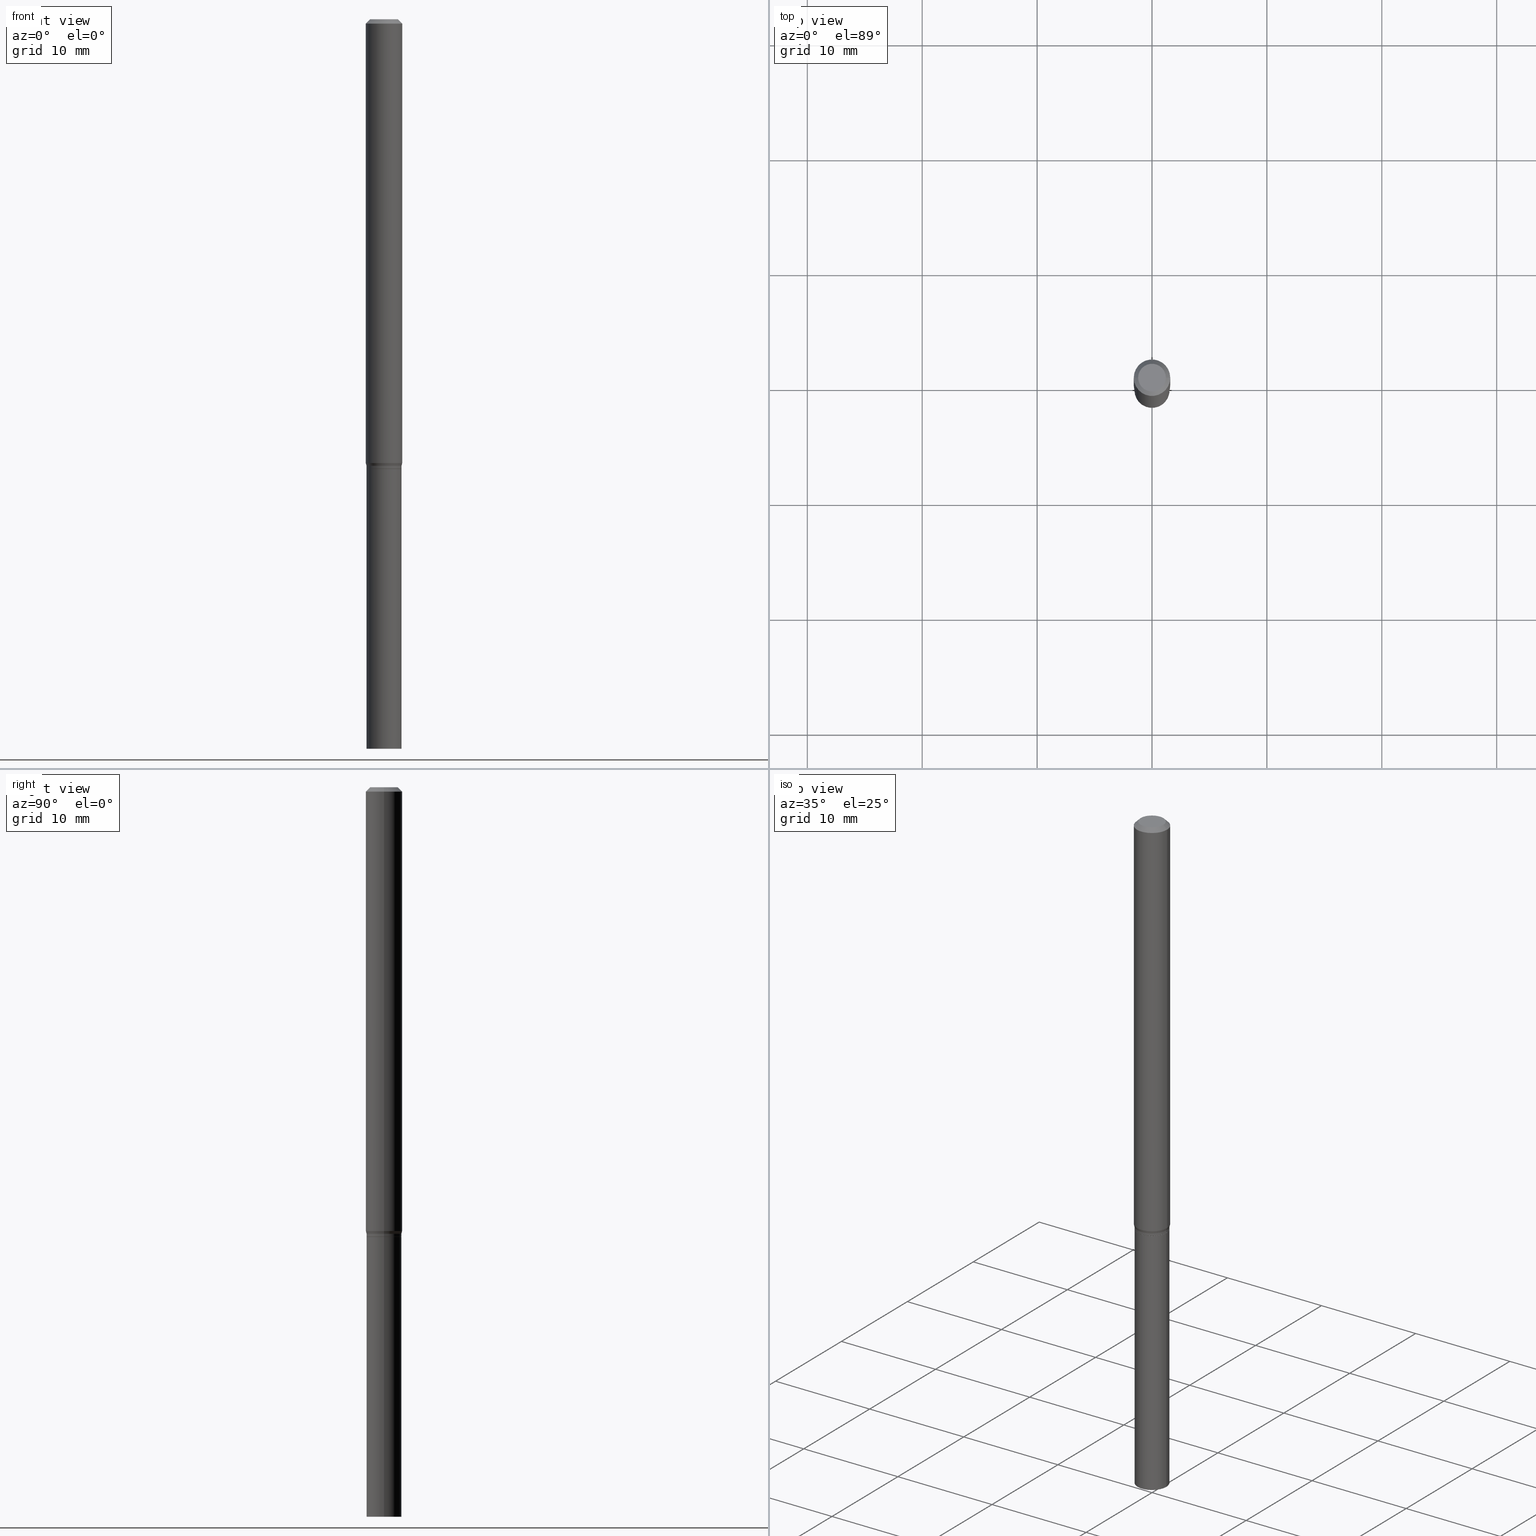
[diagram: canonical four-view strip — front | top / right | iso, engineering-drawing reading convention]
A machine part, canonical four-view strip (front | top / right | iso — engineering-drawing reading convention). The complete STEP part file that produces these views, byte-faithful:
ISO-10303-21;
HEADER;
FILE_DESCRIPTION (( 'STEP AP203' ),
    '1' );
FILE_NAME ('00637.STEP',
    '2024-03-19T22:13:30',
    ( '' ),
    ( '' ),
    'SwSTEP 2.0',
    'SolidWorks 2023',
    '' );
FILE_SCHEMA (( 'CONFIG_CONTROL_DESIGN' ));
ENDSEC;

DATA;
#1 = VERTEX_POINT ( 'NONE', #247 ) ;
#2 = LINE ( 'NONE', #400, #5 ) ;
#3 = EDGE_LOOP ( 'NONE', ( #169, #33, #93, #40 ) ) ;
#4 = ORIENTED_EDGE ( 'NONE', *, *, #102, .T. ) ;
#5 = VECTOR ( 'NONE', #214, 39.37007874015748143 ) ;
#6 = AXIS2_PLACEMENT_3D ( 'NONE', #317, #391, #244 ) ;
#7 = DIRECTION ( 'NONE',  ( 0.7071067811865452413, -7.319954787623248157E-15, -0.7071067811865497932 ) ) ;
#8 = CYLINDRICAL_SURFACE ( 'NONE', #236, 0.05999999999999979655 ) ;
#9 = EDGE_CURVE ( 'NONE', #311, #315, #53, .T. ) ;
#10 = PERSON_AND_ORGANIZATION ( #193, #386 ) ;
#11 = CIRCLE ( 'NONE', #346, 0.05999999999999999778 ) ;
#12 = MANIFOLD_SOLID_BREP ( 'Body-Move/Copy2[1]', #199 ) ;
#13 = ORIENTED_EDGE ( 'NONE', *, *, #211, .F. ) ;
#14 = DIRECTION ( 'NONE',  ( 1.000000000000000000, -6.982962677686266711E-15, 0.000000000000000000 ) ) ;
#15 = EDGE_CURVE ( 'NONE', #357, #125, #389, .T. ) ;
#16 = DIRECTION ( 'NONE',  ( 1.000000000000000000, -6.982962677686274599E-15, 0.000000000000000000 ) ) ;
#17 = COORDINATED_UNIVERSAL_TIME_OFFSET ( 5, 0, .BEHIND. ) ;
#18 = DIRECTION ( 'NONE',  ( 1.000000000000000000, -6.982962677686251722E-15, 0.000000000000000000 ) ) ;
#19 = PLANE ( 'NONE',  #448 ) ;
#20 = PLANE ( 'NONE',  #432 ) ;
#21 = PERSON_AND_ORGANIZATION ( #193, #386 ) ;
#22 = ORIENTED_EDGE ( 'NONE', *, *, #320, .F. ) ;
#23 = APPROVAL_PERSON_ORGANIZATION ( #271, #277, #304 ) ;
#24 = DIRECTION ( 'NONE',  ( 2.445468806185136597E-29, -3.491481338843145583E-15, -1.000000000000000000 ) ) ;
#25 = CARTESIAN_POINT ( 'NONE',  ( 0.05999999999999999778, -9.147681107769039999E-15, -2.500000000000000000 ) ) ;
#26 = ORIENTED_EDGE ( 'NONE', *, *, #440, .T. ) ;
#27 = ORIENTED_EDGE ( 'NONE', *, *, #430, .T. ) ;
#28 = CIRCLE ( 'NONE', #75, 0.04749999999999999362 ) ;
#29 = CARTESIAN_POINT ( 'NONE',  ( 4.189777606612136116E-16, 0.05999999999999462014, -1.540000000000000480 ) ) ;
#30 = CC_DESIGN_APPROVAL ( #384, ( #168 ) ) ;
#31 = EDGE_LOOP ( 'NONE', ( #285, #123, #13, #324 ) ) ;
#32 = ADVANCED_FACE ( 'NONE', ( #210 ), #395, .T. ) ;
#33 = ORIENTED_EDGE ( 'NONE', *, *, #292, .T. ) ;
#34 = MANIFOLD_SOLID_BREP ( 'Body-Move/Copy2[2]', #69 ) ;
#35 = ORIENTED_EDGE ( 'NONE', *, *, #364, .F. ) ;
#36 = ORIENTED_EDGE ( 'NONE', *, *, #312, .F. ) ;
#37 = DIRECTION ( 'NONE',  ( -2.445468806185136597E-29, 3.491481338843145583E-15, 1.000000000000000000 ) ) ;
#38 = CARTESIAN_POINT ( 'NONE',  ( 0.05999999999999979655, -4.189777606611745630E-16, 2.925706065477551246E-30 ) ) ;
#39 = VERTEX_POINT ( 'NONE', #435 ) ;
#40 = ORIENTED_EDGE ( 'NONE', *, *, #284, .F. ) ;
#41 = CARTESIAN_POINT ( 'NONE',  ( -0.05999999999999979655, 4.263256414560586659E-16, -2.951361054152933254E-30 ) ) ;
#42 = DIRECTION ( 'NONE',  ( 1.000000000000000000, -6.982962677686259611E-15, 0.000000000000000000 ) ) ;
#43 = DIRECTION ( 'NONE',  ( 0.2588190451025217942, 1.565188264969618812E-15, 0.9659258262890679791 ) ) ;
#44 = FACE_OUTER_BOUND ( 'NONE', #3, .T. ) ;
#45 = APPROVAL_PERSON_ORGANIZATION ( #190, #314, #376 ) ;
#46 = ADVANCED_FACE ( 'NONE', ( #44 ), #100, .T. ) ;
#47 = PERSON_AND_ORGANIZATION_ROLE ( 'classification_officer' ) ;
#48 = CARTESIAN_POINT ( 'NONE',  ( 6.198122052593289668E-29, -8.607766087339451973E-15, -2.500000000000000000 ) ) ;
#49 = DIRECTION ( 'NONE',  ( -2.438088387897960049E-29, 3.491481338843145188E-15, 1.000000000000000000 ) ) ;
#50 = AXIS2_PLACEMENT_3D ( 'NONE', #55, #268, #298 ) ;
#51 = EDGE_CURVE ( 'NONE', #458, #195, #373, .T. ) ;
#52 = CARTESIAN_POINT ( 'NONE',  ( 0.000000000000000000, 0.000000000000000000, 0.000000000000000000 ) ) ;
#53 = CIRCLE ( 'NONE', #6, 0.04749999999999999362 ) ;
#54 = CARTESIAN_POINT ( 'NONE',  ( 3.766021961525110516E-29, -5.376881261818443984E-15, -1.540000000000000036 ) ) ;
#55 = CARTESIAN_POINT ( 'NONE',  ( 0.000000000000000000, 0.000000000000000000, 0.000000000000000000 ) ) ;
#56 = PERSON_AND_ORGANIZATION ( #193, #386 ) ;
#57 = DIRECTION ( 'NONE',  ( -2.445468806185136597E-29, 3.491481338843145583E-15, 1.000000000000000000 ) ) ;
#58 = DIRECTION ( 'NONE',  ( 1.000000000000000000, -6.982962677686266711E-15, 4.876176775795935793E-29 ) ) ;
#59 = CARTESIAN_POINT ( 'NONE',  ( 3.668203209277705088E-31, -5.237222008264718399E-17, -0.01499999999999999944 ) ) ;
#60 = LOCAL_TIME ( 18, 13, 30.00000000000000000, #186 ) ;
#61 = CARTESIAN_POINT ( 'NONE',  ( 0.06250000000000000000, -4.364351673553916694E-16, 3.047610484872459871E-30 ) ) ;
#62 = VERTEX_POINT ( 'NONE', #445 ) ;
#63 = DIRECTION ( 'NONE',  ( -0.2588190451025217942, 5.211531920934552619E-15, 0.9659258262890679791 ) ) ;
#64 = ADVANCED_FACE ( 'NONE', ( #300 ), #442, .T. ) ;
#65 = VECTOR ( 'NONE', #118, 39.37007874015748143 ) ;
#66 = DIRECTION ( 'NONE',  ( -2.445468806185136597E-29, 3.491481338843145583E-15, 1.000000000000000000 ) ) ;
#67 = CONICAL_SURFACE ( 'NONE', #372, 0.05999999999999994227, 0.2617993877991505181 ) ;
#68 = DIMENSIONAL_EXPONENTS ( 1.000000000000000000, 0.000000000000000000, 0.000000000000000000, 0.000000000000000000, 0.000000000000000000, 0.000000000000000000, 0.000000000000000000 ) ;
#69 = CLOSED_SHELL ( 'NONE', ( #96, #92, #206, #249, #74, #417, #46, #173, #154, #278, #32, #446 ) ) ;
#70 = ORIENTED_EDGE ( 'NONE', *, *, #211, .T. ) ;
#71 = DIRECTION ( 'NONE',  ( 1.000000000000000000, -6.982962677686262766E-15, 0.000000000000000000 ) ) ;
#72 = DIRECTION ( 'NONE',  ( 1.000000000000000000, -6.982962677686274599E-15, 0.000000000000000000 ) ) ;
#73 = LINE ( 'NONE', #293, #410 ) ;
#74 = ADVANCED_FACE ( 'NONE', ( #260 ), #185, .T. ) ;
#75 = AXIS2_PLACEMENT_3D ( 'NONE', #152, #90, #330 ) ;
#76 = COORDINATED_UNIVERSAL_TIME_OFFSET ( 5, 0, .BEHIND. ) ;
#77 = APPROVAL_DATE_TIME ( #341, #314 ) ;
#78 = EDGE_CURVE ( 'NONE', #237, #39, #161, .T. ) ;
#79 = EDGE_LOOP ( 'NONE', ( #441, #388, #128, #418 ) ) ;
#80 = VECTOR ( 'NONE', #43, 39.37007874015748143 ) ;
#81 = AXIS2_PLACEMENT_3D ( 'NONE', #328, #251, #138 ) ;
#82 = AXIS2_PLACEMENT_3D ( 'NONE', #258, #37, #326 ) ;
#83 = CARTESIAN_POINT ( 'NONE',  ( 0.000000000000000000, 0.000000000000000000, 0.000000000000000000 ) ) ;
#84 = PERSON_AND_ORGANIZATION ( #193, #386 ) ;
#85 = DIRECTION ( 'NONE',  ( 1.000000000000000000, -6.982962677686266711E-15, 0.000000000000000000 ) ) ;
#86 = FACE_OUTER_BOUND ( 'NONE', #362, .T. ) ;
#87 = LINE ( 'NONE', #147, #65 ) ;
#88 = DIRECTION ( 'NONE',  ( 2.438088387897960049E-29, -3.491481338843145188E-15, -1.000000000000000000 ) ) ;
#89 = ORIENTED_EDGE ( 'NONE', *, *, #116, .F. ) ;
#90 = DIRECTION ( 'NONE',  ( -2.445468806185136597E-29, 3.491481338843145583E-15, 1.000000000000000000 ) ) ;
#91 = ORIENTED_EDGE ( 'NONE', *, *, #411, .T. ) ;
#92 = ADVANCED_FACE ( 'NONE', ( #378 ), #126, .T. ) ;
#93 = ORIENTED_EDGE ( 'NONE', *, *, #116, .T. ) ;
#94 = DIRECTION ( 'NONE',  ( 1.000000000000000000, -6.982962677686259611E-15, 0.000000000000000000 ) ) ;
#95 = EDGE_LOOP ( 'NONE', ( #70, #461, #370, #338 ) ) ;
#96 = ADVANCED_FACE ( 'NONE', ( #155 ), #8, .T. ) ;
#97 = CC_DESIGN_DATE_AND_TIME_ASSIGNMENT ( #331, #439, ( #168 ) ) ;
#98 = AXIS2_PLACEMENT_3D ( 'NONE', #109, #183, #14 ) ;
#99 = CARTESIAN_POINT ( 'NONE',  ( 0.05999999999999994227, -5.760944209091188969E-15, -1.530000000000000027 ) ) ;
#100 = CYLINDRICAL_SURFACE ( 'NONE', #81, 0.06250000000000000000 ) ;
#101 = CARTESIAN_POINT ( 'NONE',  ( -0.05999999999999999778, 4.263256414560600957E-16, -2.951361054152943413E-30 ) ) ;
#102 = EDGE_CURVE ( 'NONE', #238, #39, #87, .T. ) ;
#103 = DIRECTION ( 'NONE',  ( 1.000000000000000000, -6.982962677686266711E-15, 4.876176775795935232E-29 ) ) ;
#104 = AXIS2_PLACEMENT_3D ( 'NONE', #54, #150, #42 ) ;
#105 = DATE_AND_TIME ( #367, #228 ) ;
#106 = DIRECTION ( 'NONE',  ( -2.445468806185136597E-29, 3.491481338843145583E-15, 1.000000000000000000 ) ) ;
#107 = PERSON_AND_ORGANIZATION ( #193, #386 ) ;
#108 = DIRECTION ( 'NONE',  ( -2.445468806185136597E-29, 3.491481338843145583E-15, 1.000000000000000000 ) ) ;
#109 = CARTESIAN_POINT ( 'NONE',  ( 3.668203209277705088E-31, -5.237222008264718399E-17, -0.01499999999999999944 ) ) ;
#110 =( GEOMETRIC_REPRESENTATION_CONTEXT ( 3 ) GLOBAL_UNCERTAINTY_ASSIGNED_CONTEXT ( ( #111 ) ) GLOBAL_UNIT_ASSIGNED_CONTEXT ( ( #179, #394, #254 ) ) REPRESENTATION_CONTEXT ( 'NONE', 'WORKASPACE' ) );
#111 = UNCERTAINTY_MEASURE_WITH_UNIT (LENGTH_MEASURE( 1.000000000000000082E-05 ), #179, 'distance_accuracy_value', 'NONE');
#112 = CC_DESIGN_SECURITY_CLASSIFICATION ( #168, ( #219 ) ) ;
#113 = CALENDAR_DATE ( 2024, 19, 3 ) ;
#114 = CONICAL_SURFACE ( 'NONE', #170, 0.06250000000000000000, 0.7853981633974450594 ) ;
#115 = DIRECTION ( 'NONE',  ( -1.000000000000000000, 6.982962677686265922E-15, -4.876176775795935793E-29 ) ) ;
#116 = EDGE_CURVE ( 'NONE', #1, #237, #192, .T. ) ;
#117 = APPROVAL_STATUS ( 'not_yet_approved' ) ;
#118 = DIRECTION ( 'NONE',  ( -2.445468806185136877E-29, 3.491481338843145188E-15, 1.000000000000000000 ) ) ;
#119 = CARTESIAN_POINT ( 'NONE',  ( -0.04749999999999999362, 3.578768372314212971E-16, 9.929557176494080355E-17 ) ) ;
#120 = AXIS2_PLACEMENT_3D ( 'NONE', #369, #49, #340 ) ;
#121 = VECTOR ( 'NONE', #174, 39.37007874015748143 ) ;
#122 = CARTESIAN_POINT ( 'NONE',  ( 3.741567273463259531E-29, -5.341966448430012335E-15, -1.530000000000000027 ) ) ;
#123 = ORIENTED_EDGE ( 'NONE', *, *, #15, .T. ) ;
#124 = CIRCLE ( 'NONE', #265, 0.05999999999999999778 ) ;
#125 = VERTEX_POINT ( 'NONE', #201 ) ;
#126 = CONICAL_SURFACE ( 'NONE', #159, 0.05949999999999999734, 0.7853981633974739252 ) ;
#127 = EDGE_CURVE ( 'NONE', #257, #357, #327, .T. ) ;
#128 = ORIENTED_EDGE ( 'NONE', *, *, #382, .T. ) ;
#129 = CYLINDRICAL_SURFACE ( 'NONE', #234, 0.05999999999999999778 ) ;
#130 = APPLICATION_PROTOCOL_DEFINITION ( 'international standard', 'config_control_design', 1994, #380 ) ;
#131 = DIRECTION ( 'NONE',  ( -0.7071067811865656694, 7.493145998870420424E-15, 0.7071067811865294761 ) ) ;
#132 = VECTOR ( 'NONE', #287, 39.37007874015748143 ) ;
#133 = CARTESIAN_POINT ( 'NONE',  ( 3.766021961525110516E-29, -5.376881261818443984E-15, -1.540000000000000036 ) ) ;
#134 = ORIENTED_EDGE ( 'NONE', *, *, #15, .F. ) ;
#135 = DIRECTION ( 'NONE',  ( -2.445468806185136597E-29, 3.491481338843145583E-15, 1.000000000000000000 ) ) ;
#136 = DIRECTION ( 'NONE',  ( 1.000000000000000000, -6.982962677686267499E-15, 4.876176775795936353E-29 ) ) ;
#137 = PERSON_AND_ORGANIZATION_ROLE ( 'creator' ) ;
#138 = DIRECTION ( 'NONE',  ( 1.000000000000000000, -6.982962677686266711E-15, 4.876176775795935793E-29 ) ) ;
#139 = APPROVAL_STATUS ( 'not_yet_approved' ) ;
#140 = ORIENTED_EDGE ( 'NONE', *, *, #9, .F. ) ;
#141 = PERSON_AND_ORGANIZATION_ROLE ( 'creator' ) ;
#142 = ORIENTED_EDGE ( 'NONE', *, *, #299, .F. ) ;
#143 = ORIENTED_EDGE ( 'NONE', *, *, #377, .T. ) ;
#144 = DIRECTION ( 'NONE',  ( 1.000000000000000000, -6.982962677686267499E-15, 4.876176775795936353E-29 ) ) ;
#145 = CARTESIAN_POINT ( 'NONE',  ( 0.06250000000000000000, -4.888073874380388472E-16, -0.01499999999999999944 ) ) ;
#146 = CALENDAR_DATE ( 2024, 19, 3 ) ;
#147 = CARTESIAN_POINT ( 'NONE',  ( -0.06250000000000000000, 4.440892098500626162E-16, -3.074334431409316114E-30 ) ) ;
#148 = EDGE_CURVE ( 'NONE', #217, #393, #457, .T. ) ;
#149 = LOCAL_TIME ( 18, 13, 30.00000000000000000, #17 ) ;
#150 = DIRECTION ( 'NONE',  ( -2.445468806185136597E-29, 3.491481338843145583E-15, 1.000000000000000000 ) ) ;
#151 = APPROVAL_STATUS ( 'not_yet_approved' ) ;
#152 = CARTESIAN_POINT ( 'NONE',  ( -2.428242233434862517E-45, 3.466886358470595669E-31, 9.929557176494321944E-17 ) ) ;
#153 = CARTESIAN_POINT ( 'NONE',  ( 3.668203209277705088E-31, -5.237222008264718399E-17, -0.01499999999999999944 ) ) ;
#154 = ADVANCED_FACE ( 'NONE', ( #415 ), #20, .F. ) ;
#155 = FACE_OUTER_BOUND ( 'NONE', #31, .T. ) ;
#156 = AXIS2_PLACEMENT_3D ( 'NONE', #83, #414, #58 ) ;
#157 = CC_DESIGN_DATE_AND_TIME_ASSIGNMENT ( #412, #301, ( #243 ) ) ;
#158 = DIRECTION ( 'NONE',  ( 2.445468806185136597E-29, -3.491481338843145583E-15, -1.000000000000000000 ) ) ;
#159 = AXIS2_PLACEMENT_3D ( 'NONE', #232, #57, #196 ) ;
#160 = FACE_OUTER_BOUND ( 'NONE', #215, .T. ) ;
#161 = CIRCLE ( 'NONE', #220, 0.06250000000000000000 ) ;
#162 = ORIENTED_EDGE ( 'NONE', *, *, #299, .T. ) ;
#163 = ORIENTED_EDGE ( 'NONE', *, *, #284, .T. ) ;
#164 = EDGE_LOOP ( 'NONE', ( #316, #259 ) ) ;
#165 = ORIENTED_EDGE ( 'NONE', *, *, #51, .T. ) ;
#166 = ORIENTED_EDGE ( 'NONE', *, *, #148, .F. ) ;
#167 = CARTESIAN_POINT ( 'NONE',  ( 3.718750738880739679E-29, -5.309390484054409778E-15, -1.520669872981077697 ) ) ;
#168 = SECURITY_CLASSIFICATION ( '', '', #344 ) ;
#169 = ORIENTED_EDGE ( 'NONE', *, *, #102, .F. ) ;
#170 = AXIS2_PLACEMENT_3D ( 'NONE', #59, #24, #355 ) ;
#171 = CC_DESIGN_PERSON_AND_ORGANIZATION_ASSIGNMENT ( #10, #137, ( #219 ) ) ;
#172 = CARTESIAN_POINT ( 'NONE',  ( 3.741567273463259531E-29, -5.341966448430012335E-15, -1.530000000000000027 ) ) ;
#173 = ADVANCED_FACE ( 'NONE', ( #269 ), #114, .T. ) ;
#174 = DIRECTION ( 'NONE',  ( -2.445468806185136877E-29, 3.491481338843145188E-15, 1.000000000000000000 ) ) ;
#175 = EDGE_LOOP ( 'NONE', ( #465, #27, #334, #309 ) ) ;
#176 = DIRECTION ( 'NONE',  ( -2.445468806185136597E-29, 3.491481338843145583E-15, 1.000000000000000000 ) ) ;
#177 = AXIS2_PLACEMENT_3D ( 'NONE', #153, #158, #452 ) ;
#178 = VECTOR ( 'NONE', #63, 39.37007874015748143 ) ;
#179 =( CONVERSION_BASED_UNIT ( 'INCH', #281 ) LENGTH_UNIT ( ) NAMED_UNIT ( #68 ) );
#180 = PERSON_AND_ORGANIZATION_ROLE ( 'design_owner' ) ;
#181 = DIRECTION ( 'NONE',  ( -2.445468806185136597E-29, 3.491481338843145583E-15, 1.000000000000000000 ) ) ;
#182 = AXIS2_PLACEMENT_3D ( 'NONE', #167, #319, #71 ) ;
#183 = DIRECTION ( 'NONE',  ( -2.445468806185136597E-29, 3.491481338843145583E-15, 1.000000000000000000 ) ) ;
#184 = CC_DESIGN_PERSON_AND_ORGANIZATION_ASSIGNMENT ( #21, #47, ( #168 ) ) ;
#185 = CONICAL_SURFACE ( 'NONE', #255, 0.05999999999999994227, 0.2617993877991505181 ) ;
#186 = COORDINATED_UNIVERSAL_TIME_OFFSET ( 5, 0, .BEHIND. ) ;
#187 = EDGE_LOOP ( 'NONE', ( #162, #453, #166, #35 ) ) ;
#188 = CARTESIAN_POINT ( 'NONE',  ( 3.741567273463259531E-29, -5.341966448430012335E-15, -1.530000000000000027 ) ) ;
#189 = CARTESIAN_POINT ( 'NONE',  ( 3.766021961525110516E-29, -5.376881261818443984E-15, -1.540000000000000036 ) ) ;
#190 = PERSON_AND_ORGANIZATION ( #193, #386 ) ;
#191 = EDGE_CURVE ( 'NONE', #125, #238, #204, .T. ) ;
#192 = LINE ( 'NONE', #61, #347 ) ;
#193 = PERSON ( 'UNSPECIFIED', 'UNSPECIFIED', 'UNSPECIFIED', ('UNSPECIFIED'), ('UNSPECIFIED'), ('UNSPECIFIED') ) ;
#194 = ORIENTED_EDGE ( 'NONE', *, *, #455, .T. ) ;
#195 = VERTEX_POINT ( 'NONE', #25 ) ;
#196 = DIRECTION ( 'NONE',  ( 1.000000000000000000, -6.982962677686259611E-15, 0.000000000000000000 ) ) ;
#197 = AXIS2_PLACEMENT_3D ( 'NONE', #189, #337, #443 ) ;
#198 = CARTESIAN_POINT ( 'NONE',  ( 0.05999999999999999778, -4.189777606611760421E-16, 2.925706065477561756E-30 ) ) ;
#199 = CLOSED_SHELL ( 'NONE', ( #64, #241, #460, #246 ) ) ;
#200 = DIRECTION ( 'NONE',  ( -1.000000000000000000, 6.982962677686265922E-15, -4.876176775795935793E-29 ) ) ;
#201 = CARTESIAN_POINT ( 'NONE',  ( -0.05999999999999994227, -4.890471040589149503E-15, -1.530000000000000027 ) ) ;
#202 = CARTESIAN_POINT ( 'NONE',  ( 6.113672015462842613E-29, -8.728703347107864943E-15, -2.500000000000000000 ) ) ;
#203 = CIRCLE ( 'NONE', #104, 0.05949999999999999734 ) ;
#204 = LINE ( 'NONE', #421, #178 ) ;
#205 = ORIENTED_EDGE ( 'NONE', *, *, #332, .F. ) ;
#206 = ADVANCED_FACE ( 'NONE', ( #351 ), #462, .T. ) ;
#207 = LINE ( 'NONE', #38, #132 ) ;
#208 = CIRCLE ( 'NONE', #399, 0.05999999999999994227 ) ;
#209 = FACE_OUTER_BOUND ( 'NONE', #175, .T. ) ;
#210 = FACE_OUTER_BOUND ( 'NONE', #79, .T. ) ;
#211 = EDGE_CURVE ( 'NONE', #429, #125, #208, .T. ) ;
#212 = ORIENTED_EDGE ( 'NONE', *, *, #320, .T. ) ;
#213 = DIRECTION ( 'NONE',  ( -2.445468806185136877E-29, 3.491481338843145188E-15, 1.000000000000000000 ) ) ;
#214 = DIRECTION ( 'NONE',  ( 0.7071067811865656694, -2.468850131082446387E-15, 0.7071067811865294761 ) ) ;
#215 = EDGE_LOOP ( 'NONE', ( #26, #4, #397, #89 ) ) ;
#216 = FACE_OUTER_BOUND ( 'NONE', #463, .T. ) ;
#217 = VERTEX_POINT ( 'NONE', #336 ) ;
#218 = DIRECTION ( 'NONE',  ( -0.7071067811865452413, 2.468850131082233000E-15, -0.7071067811865497932 ) ) ;
#219 = PRODUCT_DEFINITION_FORMATION_WITH_SPECIFIED_SOURCE ( 'ANY', '', #379, .NOT_KNOWN. ) ;
#220 = AXIS2_PLACEMENT_3D ( 'NONE', #264, #413, #85 ) ;
#221 = COORDINATED_UNIVERSAL_TIME_OFFSET ( 5, 0, .BEHIND. ) ;
#222 = DIRECTION ( 'NONE',  ( -2.445468806185136877E-29, 3.491481338843145188E-15, 1.000000000000000000 ) ) ;
#223 = CARTESIAN_POINT ( 'NONE',  ( -0.05999999999999965083, -4.948809879692966724E-15, -1.539500000000000313 ) ) ;
#224 = DIRECTION ( 'NONE',  ( 1.000000000000000000, -6.982962677686265922E-15, 4.876176775795935793E-29 ) ) ;
#225 = FACE_OUTER_BOUND ( 'NONE', #419, .T. ) ;
#226 = APPROVAL_DATE_TIME ( #105, #384 ) ;
#227 = AXIS2_PLACEMENT_3D ( 'NONE', #29, #88, #200 ) ;
#228 = LOCAL_TIME ( 18, 13, 30.00000000000000000, #76 ) ;
#229 = CARTESIAN_POINT ( 'NONE',  ( -0.06250000000000000000, -4.865301274204346373E-15, -1.520669872981077697 ) ) ;
#230 = CARTESIAN_POINT ( 'NONE',  ( 3.766021961525111077E-29, -5.376881261818445562E-15, -1.540000000000000258 ) ) ;
#231 = MECHANICAL_CONTEXT ( 'NONE', #380, 'mechanical' ) ;
#232 = CARTESIAN_POINT ( 'NONE',  ( 3.766021961525110516E-29, -5.376881261818443984E-15, -1.540000000000000036 ) ) ;
#233 = DIRECTION ( 'NONE',  ( -2.445468806185136597E-29, 3.491481338843145583E-15, 1.000000000000000000 ) ) ;
#234 = AXIS2_PLACEMENT_3D ( 'NONE', #356, #66, #136 ) ;
#235 = CARTESIAN_POINT ( 'NONE',  ( 3.718750738880739679E-29, -5.309390484054409778E-15, -1.520669872981077697 ) ) ;
#236 = AXIS2_PLACEMENT_3D ( 'NONE', #294, #181, #416 ) ;
#237 = VERTEX_POINT ( 'NONE', #145 ) ;
#238 = VERTEX_POINT ( 'NONE', #229 ) ;
#239 = EDGE_LOOP ( 'NONE', ( #252, #165, #305, #36 ) ) ;
#240 = CIRCLE ( 'NONE', #197, 0.05949999999999999734 ) ;
#241 = ADVANCED_FACE ( 'NONE', ( #86 ), #19, .F. ) ;
#242 = ORIENTED_EDGE ( 'NONE', *, *, #262, .T. ) ;
#243 = PRODUCT_DEFINITION ( 'UNKNOWN', '', #219, #343 ) ;
#244 = DIRECTION ( 'NONE',  ( 1.000000000000000000, -6.982962677686267499E-15, 4.884662768193073002E-29 ) ) ;
#245 = EDGE_LOOP ( 'NONE', ( #428, #91, #363, #459 ) ) ;
#246 = ADVANCED_FACE ( 'NONE', ( #383 ), #272, .F. ) ;
#247 = CARTESIAN_POINT ( 'NONE',  ( 0.06250000000000000000, -5.745825651409801447E-15, -1.520669872981077697 ) ) ;
#248 = CARTESIAN_POINT ( 'NONE',  ( 0.06250000000000000000, -4.811533449433679005E-16, -0.01499999999999999944 ) ) ;
#249 = ADVANCED_FACE ( 'NONE', ( #160 ), #456, .T. ) ;
#250 = CARTESIAN_POINT ( 'NONE',  ( 3.741567273463259531E-29, -5.341966448430012335E-15, -1.530000000000000027 ) ) ;
#251 = DIRECTION ( 'NONE',  ( -2.445468806185136597E-29, 3.491481338843145583E-15, 1.000000000000000000 ) ) ;
#252 = ORIENTED_EDGE ( 'NONE', *, *, #350, .F. ) ;
#253 = CARTESIAN_POINT ( 'NONE',  ( -0.05999999999999999778, -6.626466663007093973E-15, -2.500000000000000000 ) ) ;
#254 =( NAMED_UNIT ( * ) SI_UNIT ( $, .STERADIAN. ) SOLID_ANGLE_UNIT ( ) );
#255 = AXIS2_PLACEMENT_3D ( 'NONE', #188, #339, #16 ) ;
#256 = SHAPE_DEFINITION_REPRESENTATION ( #404, #329 ) ;
#257 = VERTEX_POINT ( 'NONE', #345 ) ;
#258 = CARTESIAN_POINT ( 'NONE',  ( 3.764799227122018275E-29, -5.375135521149024058E-15, -1.539500000000000313 ) ) ;
#259 = ORIENTED_EDGE ( 'NONE', *, *, #312, .T. ) ;
#260 = FACE_OUTER_BOUND ( 'NONE', #95, .T. ) ;
#261 = CARTESIAN_POINT ( 'NONE',  ( 6.113672015462842613E-29, -8.728703347107864943E-15, -2.500000000000000000 ) ) ;
#262 = EDGE_CURVE ( 'NONE', #315, #311, #28, .T. ) ;
#263 = PERSON_AND_ORGANIZATION_ROLE ( 'design_supplier' ) ;
#264 = CARTESIAN_POINT ( 'NONE',  ( 3.668203209277705088E-31, -5.237222008264718399E-17, -0.01499999999999999944 ) ) ;
#265 = AXIS2_PLACEMENT_3D ( 'NONE', #276, #420, #403 ) ;
#266 = DIRECTION ( 'NONE',  ( 1.000000000000000000, -6.982962677686260400E-15, 0.000000000000000000 ) ) ;
#267 = PRODUCT_RELATED_PRODUCT_CATEGORY ( 'detail', '', ( #379 ) ) ;
#268 = DIRECTION ( 'NONE',  ( 0.000000000000000000, 0.000000000000000000, 1.000000000000000000 ) ) ;
#269 = FACE_OUTER_BOUND ( 'NONE', #423, .T. ) ;
#270 = DIRECTION ( 'NONE',  ( -2.445468806185136597E-29, 3.491481338843145583E-15, 1.000000000000000000 ) ) ;
#271 = PERSON_AND_ORGANIZATION ( #193, #386 ) ;
#272 = PLANE ( 'NONE',  #227 ) ;
#273 = VERTEX_POINT ( 'NONE', #402 ) ;
#274 = VECTOR ( 'NONE', #7, 39.37007874015748143 ) ;
#275 = APPLICATION_CONTEXT ( 'configuration controlled 3d designs of mechanical parts and assemblies' ) ;
#276 = CARTESIAN_POINT ( 'NONE',  ( 3.766021961525111077E-29, -5.376881261818445562E-15, -1.540000000000000258 ) ) ;
#277 = APPROVAL ( #139, 'UNSPECIFIED' ) ;
#278 = ADVANCED_FACE ( 'NONE', ( #225 ), #368, .F. ) ;
#279 = ORIENTED_EDGE ( 'NONE', *, *, #426, .T. ) ;
#280 = AXIS2_PLACEMENT_3D ( 'NONE', #172, #135, #291 ) ;
#281 = LENGTH_MEASURE_WITH_UNIT ( LENGTH_MEASURE( 0.02539999999999999897 ), #366 );
#282 = DIRECTION ( 'NONE',  ( 1.000000000000000000, -6.982962677686274599E-15, 0.000000000000000000 ) ) ;
#283 = LINE ( 'NONE', #398, #431 ) ;
#284 = EDGE_CURVE ( 'NONE', #39, #237, #286, .T. ) ;
#285 = ORIENTED_EDGE ( 'NONE', *, *, #127, .T. ) ;
#286 = CIRCLE ( 'NONE', #98, 0.06250000000000000000 ) ;
#287 = DIRECTION ( 'NONE',  ( -2.445468806185136877E-29, 3.491481338843145188E-15, 1.000000000000000000 ) ) ;
#288 = AXIS2_PLACEMENT_3D ( 'NONE', #133, #289, #94 ) ;
#289 = DIRECTION ( 'NONE',  ( -2.445468806185136597E-29, 3.491481338843145583E-15, 1.000000000000000000 ) ) ;
#290 = CIRCLE ( 'NONE', #82, 0.05999999999999965083 ) ;
#291 = DIRECTION ( 'NONE',  ( 1.000000000000000000, -6.982962677686274599E-15, 0.000000000000000000 ) ) ;
#292 = EDGE_CURVE ( 'NONE', #238, #1, #409, .T. ) ;
#293 = CARTESIAN_POINT ( 'NONE',  ( -0.06250000000000000000, 3.840629472727444916E-16, -0.01499999999999999944 ) ) ;
#294 = CARTESIAN_POINT ( 'NONE',  ( 0.000000000000000000, 0.000000000000000000, 0.000000000000000000 ) ) ;
#295 = CC_DESIGN_PERSON_AND_ORGANIZATION_ASSIGNMENT ( #56, #263, ( #219 ) ) ;
#296 = COORDINATED_UNIVERSAL_TIME_OFFSET ( 5, 0, .BEHIND. ) ;
#297 = CARTESIAN_POINT ( 'NONE',  ( 0.04749999999999999362, -4.035134999187576651E-16, 9.929557176494579556E-17 ) ) ;
#298 = DIRECTION ( 'NONE',  ( 1.000000000000000000, 0.000000000000000000, 0.000000000000000000 ) ) ;
#299 = EDGE_CURVE ( 'NONE', #195, #458, #11, .T. ) ;
#300 = FACE_OUTER_BOUND ( 'NONE', #187, .T. ) ;
#301 = DATE_TIME_ROLE ( 'creation_date' ) ;
#302 = ORIENTED_EDGE ( 'NONE', *, *, #127, .F. ) ;
#303 = CARTESIAN_POINT ( 'NONE',  ( 3.764799227122018275E-29, -5.375135521149024058E-15, -1.539500000000000313 ) ) ;
#304 = APPROVAL_ROLE ( '' ) ;
#305 = ORIENTED_EDGE ( 'NONE', *, *, #364, .T. ) ;
#306 = LOCAL_TIME ( 18, 13, 30.00000000000000000, #221 ) ;
#307 = CARTESIAN_POINT ( 'NONE',  ( 3.316907271900976096E-16, 0.04749999999999999362, -1.161975777125777867E-16 ) ) ;
#308 = APPROVAL_ROLE ( '' ) ;
#309 = ORIENTED_EDGE ( 'NONE', *, *, #292, .F. ) ;
#310 = DIRECTION ( 'NONE',  ( 1.000000000000000000, -6.982962677686262766E-15, 0.000000000000000000 ) ) ;
#311 = VERTEX_POINT ( 'NONE', #119 ) ;
#312 = EDGE_CURVE ( 'NONE', #393, #217, #124, .T. ) ;
#313 = ORIENTED_EDGE ( 'NONE', *, *, #51, .F. ) ;
#314 = APPROVAL ( #117, 'UNSPECIFIED' ) ;
#315 = VERTEX_POINT ( 'NONE', #297 ) ;
#316 = ORIENTED_EDGE ( 'NONE', *, *, #148, .T. ) ;
#317 = CARTESIAN_POINT ( 'NONE',  ( -2.428242233434862517E-45, 3.466886358470595669E-31, 9.929557176494321944E-17 ) ) ;
#318 = AXIS2_PLACEMENT_3D ( 'NONE', #235, #270, #310 ) ;
#319 = DIRECTION ( 'NONE',  ( -2.445468806185136597E-29, 3.491481338843145583E-15, 1.000000000000000000 ) ) ;
#320 = EDGE_CURVE ( 'NONE', #62, #273, #240, .T. ) ;
#321 = LINE ( 'NONE', #101, #392 ) ;
#322 = ORIENTED_EDGE ( 'NONE', *, *, #430, .F. ) ;
#323 = CARTESIAN_POINT ( 'NONE',  ( 0.05999999999999994227, -5.760944209091188969E-15, -1.530000000000000027 ) ) ;
#324 = ORIENTED_EDGE ( 'NONE', *, *, #426, .F. ) ;
#325 = CIRCLE ( 'NONE', #182, 0.06250000000000000000 ) ;
#326 = DIRECTION ( 'NONE',  ( 1.000000000000000000, -6.982962677686260400E-15, 0.000000000000000000 ) ) ;
#327 = CIRCLE ( 'NONE', #401, 0.05999999999999965083 ) ;
#328 = CARTESIAN_POINT ( 'NONE',  ( 0.000000000000000000, 0.000000000000000000, 0.000000000000000000 ) ) ;
#329 = ADVANCED_BREP_SHAPE_REPRESENTATION ( '00637', ( #12, #34, #50 ), #110 ) ;
#330 = DIRECTION ( 'NONE',  ( 1.000000000000000000, -6.982962677686267499E-15, 4.884662768193073002E-29 ) ) ;
#331 = DATE_AND_TIME ( #333, #438 ) ;
#332 = EDGE_CURVE ( 'NONE', #273, #62, #203, .T. ) ;
#333 = CALENDAR_DATE ( 2024, 19, 3 ) ;
#334 = ORIENTED_EDGE ( 'NONE', *, *, #407, .T. ) ;
#335 = CIRCLE ( 'NONE', #280, 0.05999999999999994227 ) ;
#336 = CARTESIAN_POINT ( 'NONE',  ( 0.05999999999999999778, -5.795859022479621407E-15, -1.540000000000000258 ) ) ;
#337 = DIRECTION ( 'NONE',  ( -2.445468806185136597E-29, 3.491481338843145583E-15, 1.000000000000000000 ) ) ;
#338 = ORIENTED_EDGE ( 'NONE', *, *, #407, .F. ) ;
#339 = DIRECTION ( 'NONE',  ( -2.445468806185136597E-29, 3.491481338843145583E-15, 1.000000000000000000 ) ) ;
#340 = DIRECTION ( 'NONE',  ( 1.000000000000000000, -6.982962677686265922E-15, 4.876176775795935793E-29 ) ) ;
#341 = DATE_AND_TIME ( #146, #306 ) ;
#342 = DIRECTION ( 'NONE',  ( -2.445468806185136877E-29, 3.491481338843145188E-15, 1.000000000000000000 ) ) ;
#343 = DESIGN_CONTEXT ( 'detailed design', #275, 'design' ) ;
#344 = SECURITY_CLASSIFICATION_LEVEL ( 'unclassified' ) ;
#345 = CARTESIAN_POINT ( 'NONE',  ( 0.05999999999999965083, -5.794113281810196748E-15, -1.539500000000000313 ) ) ;
#346 = AXIS2_PLACEMENT_3D ( 'NONE', #202, #454, #348 ) ;
#347 = VECTOR ( 'NONE', #342, 39.37007874015748143 ) ;
#348 = DIRECTION ( 'NONE',  ( 1.000000000000000000, -6.982962677686251722E-15, 0.000000000000000000 ) ) ;
#349 = ORIENTED_EDGE ( 'NONE', *, *, #411, .F. ) ;
#350 = EDGE_CURVE ( 'NONE', #458, #393, #321, .T. ) ;
#351 = FACE_OUTER_BOUND ( 'NONE', #245, .T. ) ;
#352 = AXIS2_PLACEMENT_3D ( 'NONE', #261, #108, #18 ) ;
#353 = AXIS2_PLACEMENT_3D ( 'NONE', #436, #176, #103 ) ;
#354 = CC_DESIGN_PERSON_AND_ORGANIZATION_ASSIGNMENT ( #84, #141, ( #243 ) ) ;
#355 = DIRECTION ( 'NONE',  ( -1.000000000000000000, 6.982962677686266711E-15, 0.000000000000000000 ) ) ;
#356 = CARTESIAN_POINT ( 'NONE',  ( 0.000000000000000000, 0.000000000000000000, 0.000000000000000000 ) ) ;
#357 = VERTEX_POINT ( 'NONE', #223 ) ;
#358 = LINE ( 'NONE', #99, #80 ) ;
#359 = CC_DESIGN_PERSON_AND_ORGANIZATION_ASSIGNMENT ( #374, #180, ( #379 ) ) ;
#360 = EDGE_LOOP ( 'NONE', ( #408, #242 ) ) ;
#361 = LINE ( 'NONE', #248, #274 ) ;
#362 = EDGE_LOOP ( 'NONE', ( #142, #313 ) ) ;
#363 = ORIENTED_EDGE ( 'NONE', *, *, #78, .T. ) ;
#364 = EDGE_CURVE ( 'NONE', #195, #217, #390, .T. ) ;
#365 = CC_DESIGN_APPROVAL ( #314, ( #243 ) ) ;
#366 =( LENGTH_UNIT ( ) NAMED_UNIT ( * ) SI_UNIT ( $, .METRE. ) );
#367 = CALENDAR_DATE ( 2024, 19, 3 ) ;
#368 = PLANE ( 'NONE',  #120 ) ;
#369 = CARTESIAN_POINT ( 'NONE',  ( 3.766021961525110516E-29, -5.376881261818443984E-15, -1.540000000000000036 ) ) ;
#370 = ORIENTED_EDGE ( 'NONE', *, *, #440, .F. ) ;
#371 = ORIENTED_EDGE ( 'NONE', *, *, #466, .T. ) ;
#372 = AXIS2_PLACEMENT_3D ( 'NONE', #250, #396, #72 ) ;
#373 = CIRCLE ( 'NONE', #352, 0.05999999999999999778 ) ;
#374 = PERSON_AND_ORGANIZATION ( #193, #386 ) ;
#375 = DIRECTION ( 'NONE',  ( 1.000000000000000000, -6.982962677686268288E-15, 0.000000000000000000 ) ) ;
#376 = APPROVAL_ROLE ( '' ) ;
#377 = EDGE_CURVE ( 'NONE', #357, #257, #290, .T. ) ;
#378 = FACE_OUTER_BOUND ( 'NONE', #427, .T. ) ;
#379 = PRODUCT ( '00637', '00637', '', ( #231 ) ) ;
#380 = APPLICATION_CONTEXT ( 'configuration controlled 3d designs of mechanical parts and assemblies' ) ;
#381 = CC_DESIGN_APPROVAL ( #277, ( #219 ) ) ;
#382 = EDGE_CURVE ( 'NONE', #62, #257, #2, .T. ) ;
#383 = FACE_OUTER_BOUND ( 'NONE', #164, .T. ) ;
#384 = APPROVAL ( #151, 'UNSPECIFIED' ) ;
#385 = ORIENTED_EDGE ( 'NONE', *, *, #382, .F. ) ;
#386 = ORGANIZATION ( 'UNSPECIFIED', 'UNSPECIFIED', '' ) ;
#387 = AXIS2_PLACEMENT_3D ( 'NONE', #230, #451, #375 ) ;
#388 = ORIENTED_EDGE ( 'NONE', *, *, #332, .T. ) ;
#389 = LINE ( 'NONE', #41, #121 ) ;
#390 = LINE ( 'NONE', #198, #424 ) ;
#391 = DIRECTION ( 'NONE',  ( -2.445468806185136597E-29, 3.491481338843145583E-15, 1.000000000000000000 ) ) ;
#392 = VECTOR ( 'NONE', #222, 39.37007874015748143 ) ;
#393 = VERTEX_POINT ( 'NONE', #433 ) ;
#394 =( NAMED_UNIT ( * ) PLANE_ANGLE_UNIT ( ) SI_UNIT ( $, .RADIAN. ) );
#395 = CONICAL_SURFACE ( 'NONE', #288, 0.05949999999999999734, 0.7853981633974739252 ) ;
#396 = DIRECTION ( 'NONE',  ( -2.445468806185136597E-29, 3.491481338843145583E-15, 1.000000000000000000 ) ) ;
#397 = ORIENTED_EDGE ( 'NONE', *, *, #78, .F. ) ;
#398 = CARTESIAN_POINT ( 'NONE',  ( -0.05949999999999999734, -4.954108334041184393E-15, -1.540000000000000036 ) ) ;
#399 = AXIS2_PLACEMENT_3D ( 'NONE', #122, #422, #282 ) ;
#400 = CARTESIAN_POINT ( 'NONE',  ( 0.05949999999999999734, -5.792367541140776822E-15, -1.540000000000000036 ) ) ;
#401 = AXIS2_PLACEMENT_3D ( 'NONE', #303, #233, #266 ) ;
#402 = CARTESIAN_POINT ( 'NONE',  ( -0.05949999999999999734, -4.951459106867075558E-15, -1.540000000000000036 ) ) ;
#403 = DIRECTION ( 'NONE',  ( 1.000000000000000000, -6.982962677686268288E-15, 0.000000000000000000 ) ) ;
#404 = PRODUCT_DEFINITION_SHAPE ( 'NONE', 'NONE',  #243 ) ;
#405 = DATE_AND_TIME ( #444, #60 ) ;
#406 = DIRECTION ( 'NONE',  ( -2.438088387897960049E-29, 3.491481338843145188E-15, 1.000000000000000000 ) ) ;
#407 = EDGE_CURVE ( 'NONE', #429, #1, #358, .T. ) ;
#408 = ORIENTED_EDGE ( 'NONE', *, *, #9, .T. ) ;
#409 = CIRCLE ( 'NONE', #318, 0.06250000000000000000 ) ;
#410 = VECTOR ( 'NONE', #218, 39.37007874015748143 ) ;
#411 = EDGE_CURVE ( 'NONE', #315, #237, #361, .T. ) ;
#412 = DATE_AND_TIME ( #113, #149 ) ;
#413 = DIRECTION ( 'NONE',  ( -2.445468806185136597E-29, 3.491481338843145583E-15, 1.000000000000000000 ) ) ;
#414 = DIRECTION ( 'NONE',  ( -2.445468806185136597E-29, 3.491481338843145583E-15, 1.000000000000000000 ) ) ;
#415 = FACE_OUTER_BOUND ( 'NONE', #360, .T. ) ;
#416 = DIRECTION ( 'NONE',  ( 1.000000000000000000, -6.982962677686266711E-15, 4.876176775795935232E-29 ) ) ;
#417 = ADVANCED_FACE ( 'NONE', ( #209 ), #67, .T. ) ;
#418 = ORIENTED_EDGE ( 'NONE', *, *, #377, .F. ) ;
#419 = EDGE_LOOP ( 'NONE', ( #22, #205 ) ) ;
#420 = DIRECTION ( 'NONE',  ( -2.445468806185136597E-29, 3.491481338843145583E-15, 1.000000000000000000 ) ) ;
#421 = CARTESIAN_POINT ( 'NONE',  ( -0.05999999999999994227, -4.915640806973953423E-15, -1.530000000000000027 ) ) ;
#422 = DIRECTION ( 'NONE',  ( -2.445468806185136597E-29, 3.491481338843145583E-15, 1.000000000000000000 ) ) ;
#423 = EDGE_LOOP ( 'NONE', ( #349, #140, #371, #163 ) ) ;
#424 = VECTOR ( 'NONE', #213, 39.37007874015748143 ) ;
#425 = AXIS2_PLACEMENT_3D ( 'NONE', #52, #106, #144 ) ;
#426 = EDGE_CURVE ( 'NONE', #257, #429, #207, .T. ) ;
#427 = EDGE_LOOP ( 'NONE', ( #212, #194, #302, #385 ) ) ;
#428 = ORIENTED_EDGE ( 'NONE', *, *, #262, .F. ) ;
#429 = VERTEX_POINT ( 'NONE', #323 ) ;
#430 = EDGE_CURVE ( 'NONE', #125, #429, #335, .T. ) ;
#431 = VECTOR ( 'NONE', #131, 39.37007874015748143 ) ;
#432 = AXIS2_PLACEMENT_3D ( 'NONE', #307, #449, #115 ) ;
#433 = CARTESIAN_POINT ( 'NONE',  ( -0.05999999999999999778, -6.626466663007093973E-15, -1.540000000000000258 ) ) ;
#434 = APPROVAL_PERSON_ORGANIZATION ( #107, #384, #308 ) ;
#435 = CARTESIAN_POINT ( 'NONE',  ( -0.06250000000000000000, -2.236792142218466010E-15, -0.01499999999999999944 ) ) ;
#436 = CARTESIAN_POINT ( 'NONE',  ( 0.000000000000000000, 0.000000000000000000, 0.000000000000000000 ) ) ;
#437 = FACE_OUTER_BOUND ( 'NONE', #239, .T. ) ;
#438 = LOCAL_TIME ( 18, 13, 30.00000000000000000, #296 ) ;
#439 = DATE_TIME_ROLE ( 'classification_date' ) ;
#440 = EDGE_CURVE ( 'NONE', #1, #238, #325, .T. ) ;
#441 = ORIENTED_EDGE ( 'NONE', *, *, #455, .F. ) ;
#442 = CYLINDRICAL_SURFACE ( 'NONE', #425, 0.05999999999999999778 ) ;
#443 = DIRECTION ( 'NONE',  ( 1.000000000000000000, -6.982962677686259611E-15, 0.000000000000000000 ) ) ;
#444 = CALENDAR_DATE ( 2024, 19, 3 ) ;
#445 = CARTESIAN_POINT ( 'NONE',  ( 0.05949999999999999734, -5.792367541140776822E-15, -1.540000000000000036 ) ) ;
#446 = ADVANCED_FACE ( 'NONE', ( #216 ), #464, .T. ) ;
#447 = APPROVAL_DATE_TIME ( #405, #277 ) ;
#448 = AXIS2_PLACEMENT_3D ( 'NONE', #48, #406, #224 ) ;
#449 = DIRECTION ( 'NONE',  ( 2.438088387897960049E-29, -3.491481338843145188E-15, -1.000000000000000000 ) ) ;
#450 = APPLICATION_PROTOCOL_DEFINITION ( 'international standard', 'config_control_design', 1994, #275 ) ;
#451 = DIRECTION ( 'NONE',  ( -2.445468806185136597E-29, 3.491481338843145583E-15, 1.000000000000000000 ) ) ;
#452 = DIRECTION ( 'NONE',  ( -1.000000000000000000, 6.982962677686266711E-15, 0.000000000000000000 ) ) ;
#453 = ORIENTED_EDGE ( 'NONE', *, *, #350, .T. ) ;
#454 = DIRECTION ( 'NONE',  ( -2.445468806185136597E-29, 3.491481338843145583E-15, 1.000000000000000000 ) ) ;
#455 = EDGE_CURVE ( 'NONE', #273, #357, #283, .T. ) ;
#456 = CYLINDRICAL_SURFACE ( 'NONE', #156, 0.06250000000000000000 ) ;
#457 = CIRCLE ( 'NONE', #387, 0.05999999999999999778 ) ;
#458 = VERTEX_POINT ( 'NONE', #253 ) ;
#459 = ORIENTED_EDGE ( 'NONE', *, *, #466, .F. ) ;
#460 = ADVANCED_FACE ( 'NONE', ( #437 ), #129, .T. ) ;
#461 = ORIENTED_EDGE ( 'NONE', *, *, #191, .T. ) ;
#462 = CONICAL_SURFACE ( 'NONE', #177, 0.06250000000000000000, 0.7853981633974450594 ) ;
#463 = EDGE_LOOP ( 'NONE', ( #134, #143, #279, #322 ) ) ;
#464 = CYLINDRICAL_SURFACE ( 'NONE', #353, 0.05999999999999979655 ) ;
#465 = ORIENTED_EDGE ( 'NONE', *, *, #191, .F. ) ;
#466 = EDGE_CURVE ( 'NONE', #311, #39, #73, .T. ) ;
ENDSEC;
END-ISO-10303-21;
